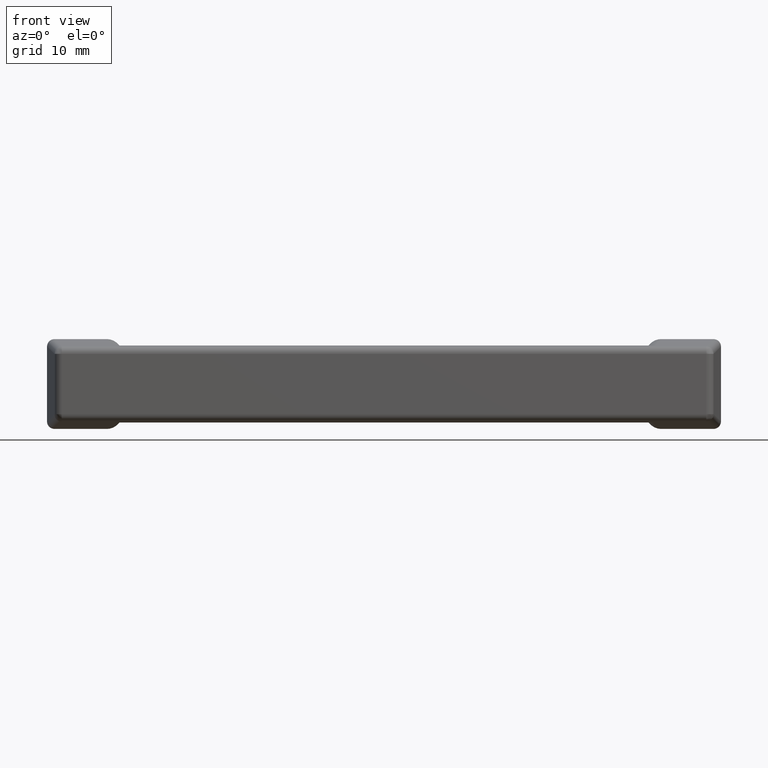
[diagram: clean part render]
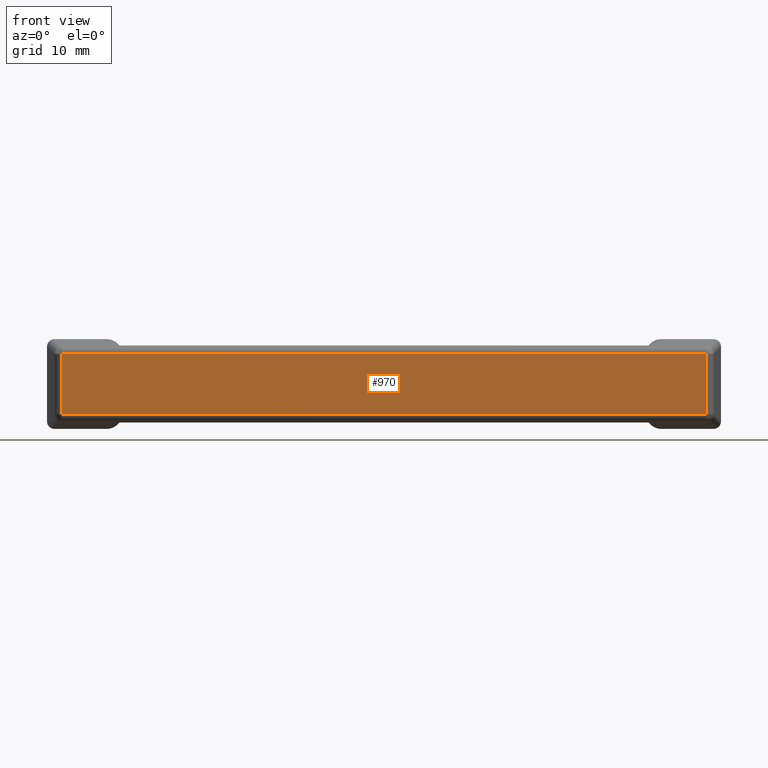
[diagram: same view with one face highlighted and labeled with its STEP entity id]
A machine part, front view. The second image highlights one B-rep face of the part: STEP entity #970.
In plain terms, the highlighted face is a freeform B-spline surface patch.
Its self-contained STEP definition (entity closure, byte-faithful):
#935=CARTESIAN_POINT('',(47.325926155980113,-36.0,-4.429728499855171));
#936=CARTESIAN_POINT('',(-47.325835309902288,-36.0,-4.429728499855171));
#937=CARTESIAN_POINT('',(47.325926155980113,-36.0,4.429728715901316));
#938=CARTESIAN_POINT('',(-47.325835309902288,-36.0,4.429728715901316));
#939=B_SPLINE_SURFACE_WITH_KNOTS('',1,1,((#935,#937),(#936,#938)),.UNSPECIFIED.,.F.,.F.,.U.,(2,2),(2,2),(0.0,94.651761465882402),(0.0,8.859457215756486),.UNSPECIFIED.);
#940=CARTESIAN_POINT('',(43.027485203951201,-36.0,4.027392049701705));
#941=VERTEX_POINT('',#940);
#942=CARTESIAN_POINT('',(-43.027392049701703,-36.0,4.027392049701705));
#943=VERTEX_POINT('',#942);
#944=CARTESIAN_POINT('',(43.027485203951201,-36.0,4.027392049701705));
#945=CARTESIAN_POINT('',(-43.027392049701703,-36.0,4.027392049701705));
#946=QUASI_UNIFORM_CURVE('',1,(#944,#945),.UNSPECIFIED.,.F.,.U.);
#947=EDGE_CURVE('',#941,#943,#946,.T.);
#948=ORIENTED_EDGE('',*,*,#947,.T.);
#949=CARTESIAN_POINT('',(-43.027392049701703,-36.0,-4.027392049701705));
#950=VERTEX_POINT('',#949);
#951=CARTESIAN_POINT('',(-43.027392049701703,-36.0,4.027392049701705));
#952=CARTESIAN_POINT('',(-43.027392049701703,-36.0,-4.027392049701705));
#953=QUASI_UNIFORM_CURVE('',1,(#951,#952),.UNSPECIFIED.,.F.,.U.);
#954=EDGE_CURVE('',#943,#950,#953,.T.);
#955=ORIENTED_EDGE('',*,*,#954,.T.);
#956=CARTESIAN_POINT('',(43.027485203951201,-36.0,-4.027392049701705));
#957=VERTEX_POINT('',#956);
#958=CARTESIAN_POINT('',(-43.027392049701703,-36.0,-4.027392049701705));
#959=CARTESIAN_POINT('',(43.027485203951201,-36.0,-4.027392049701705));
#960=QUASI_UNIFORM_CURVE('',1,(#958,#959),.UNSPECIFIED.,.F.,.U.);
#961=EDGE_CURVE('',#950,#957,#960,.T.);
#962=ORIENTED_EDGE('',*,*,#961,.T.);
#963=CARTESIAN_POINT('',(43.027485203951201,-36.0,-4.027392049701705));
#964=CARTESIAN_POINT('',(43.027485203951201,-36.0,4.027392049701705));
#965=QUASI_UNIFORM_CURVE('',1,(#963,#964),.UNSPECIFIED.,.F.,.U.);
#966=EDGE_CURVE('',#957,#941,#965,.T.);
#967=ORIENTED_EDGE('',*,*,#966,.T.);
#968=EDGE_LOOP('',(#948,#955,#962,#967));
#969=FACE_OUTER_BOUND('',#968,.T.);
#970=ADVANCED_FACE('',(#969),#939,.F.);